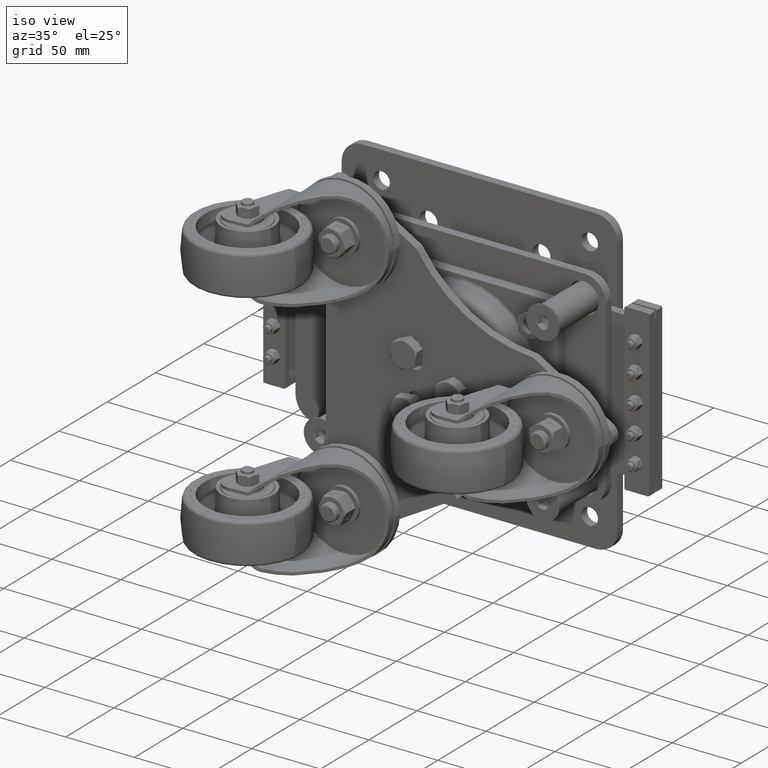
[diagram: clean part render]
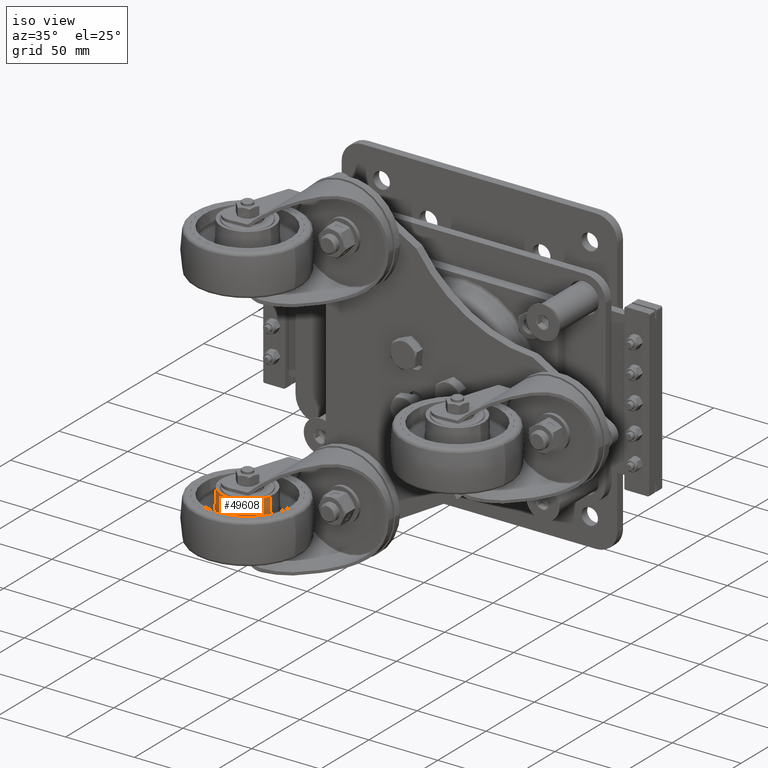
[diagram: same view with one face highlighted and labeled with its STEP entity id]
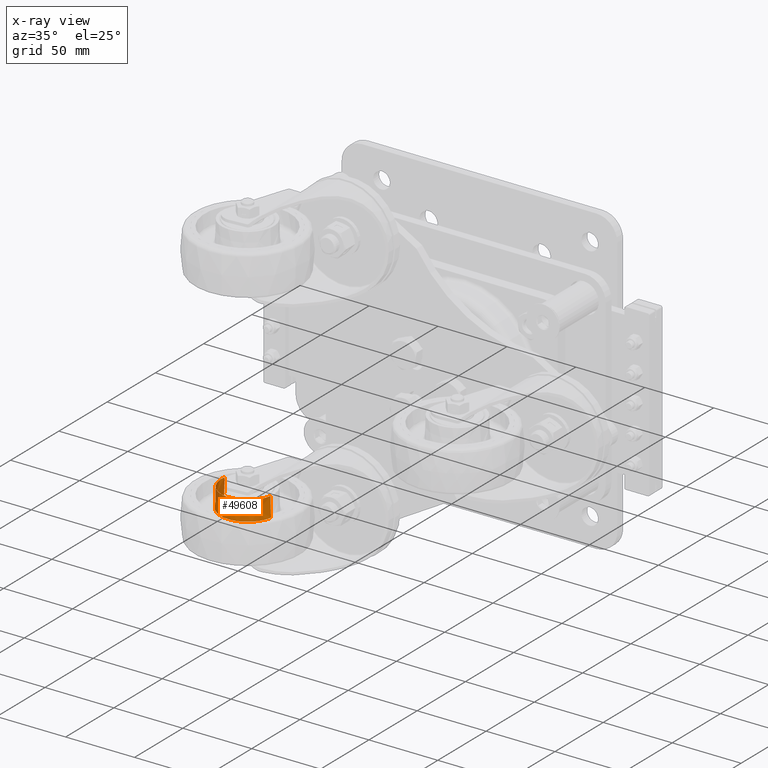
[diagram: x-ray of the same camera — body ghosted, the highlighted face saturated]
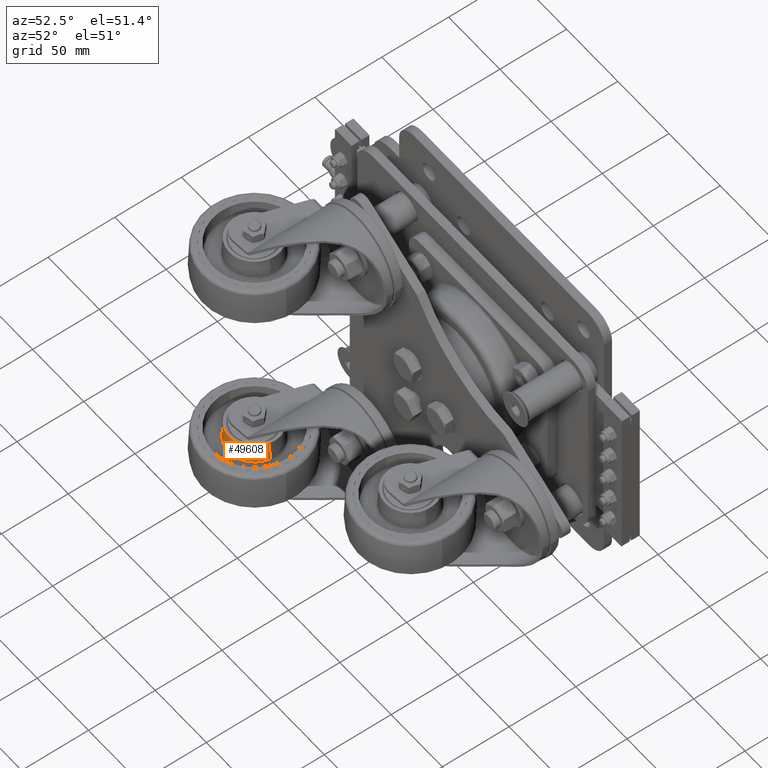
[diagram: same view with one face highlighted and labeled with its STEP entity id]
A machine part, iso view. The second image highlights one B-rep face of the part: STEP entity #49608.
The next image is the same camera in x-ray: the body ghosted, the highlighted face saturated — about 0% of this face is hidden behind the body in this view.
A second angle (auxiliary view) of the same face is appended — the face is thin or edge-on in the first view.
In plain terms, the highlighted conical surface has half-angle 2 deg.
Its self-contained STEP definition (entity closure, byte-faithful):
#2853 = EDGE_LOOP ( 'NONE', ( #5209, #82003, #94356, #73815, #51128 ) ) ;
#5209 = ORIENTED_EDGE ( 'NONE', *, *, #127698, .F. ) ;
#5767 = VECTOR ( 'NONE', #29502, 1000.000000000000114 ) ;
#9813 = VERTEX_POINT ( 'NONE', #76328 ) ;
#12220 = DIRECTION ( 'NONE',  ( 0.9870184825516734595, -0.1606067093909585575, 0.0000000000000000000 ) ) ;
#16117 = AXIS2_PLACEMENT_3D ( 'NONE', #125349, #126218, #56059 ) ;
#18349 = DIRECTION ( 'NONE',  ( -0.9870184825516734595, 0.1606067093909584464, 0.0000000000000000000 ) ) ;
#18839 = CARTESIAN_POINT ( 'NONE',  ( -105.5033511684820269, -105.9484725215718726, -67.90157848412015085 ) ) ;
#20389 = VERTEX_POINT ( 'NONE', #27210 ) ;
#26115 = LINE ( 'NONE', #78516, #5767 ) ;
#26645 = FACE_OUTER_BOUND ( 'NONE', #2853, .T. ) ;
#27210 = CARTESIAN_POINT ( 'NONE',  ( -67.99664883151832839, -112.0515274784283122, -67.90157848412015085 ) ) ;
#29225 = VERTEX_POINT ( 'NONE', #94334 ) ;
#29502 = DIRECTION ( 'NONE',  ( 0.03444644827711845075, -0.005605093324789445566, -0.9993908270190956511 ) ) ;
#35147 = DIRECTION ( 'NONE',  ( -0.9870184825516734595, 0.1606067093909584742, 0.0000000000000000000 ) ) ;
#43279 = DIRECTION ( 'NONE',  ( -2.612927235690062728E-16, -3.015932226210252133E-16, -1.000000000000000000 ) ) ;
#47928 = CARTESIAN_POINT ( 'NONE',  ( -105.7963244502449243, -105.9008001876133847, -76.40157848412016506 ) ) ;
#49608 = ADVANCED_FACE ( 'NONE', ( #26645 ), #57761, .T. ) ;
#51128 = ORIENTED_EDGE ( 'NONE', *, *, #122695, .F. ) ;
#56059 = DIRECTION ( 'NONE',  ( 0.9870184825516734595, -0.1606067093909585575, 0.0000000000000000000 ) ) ;
#57761 = CONICAL_SURFACE ( 'NONE', #83615, 19.29682654067989844, 0.03490658503988566114 ) ;
#58617 = AXIS2_PLACEMENT_3D ( 'NONE', #62077, #43279, #12220 ) ;
#59923 = EDGE_CURVE ( 'NONE', #9813, #94505, #73453, .T. ) ;
#62077 = CARTESIAN_POINT ( 'NONE',  ( -86.75000000000018474, -109.0000000000000995, -82.00627697422766005 ) ) ;
#68233 = DIRECTION ( 'NONE',  ( -2.612927235690062728E-16, -3.015932226210252133E-16, -1.000000000000000000 ) ) ;
#73453 = CIRCLE ( 'NONE', #58617, 19.49254692472360162 ) ;
#73815 = ORIENTED_EDGE ( 'NONE', *, *, #59923, .F. ) ;
#76328 = CARTESIAN_POINT ( 'NONE',  ( -89.88063381922890471, -128.2395040867080809, -82.00627697422766005 ) ) ;
#77016 = CARTESIAN_POINT ( 'NONE',  ( -86.75000000000018474, -109.0000000000000995, -76.40157848412016506 ) ) ;
#78516 = CARTESIAN_POINT ( 'NONE',  ( -67.70367554975545943, -112.0991998123868143, -76.40157848412016506 ) ) ;
#82003 = ORIENTED_EDGE ( 'NONE', *, *, #87393, .T. ) ;
#83615 = AXIS2_PLACEMENT_3D ( 'NONE', #77016, #68233, #18349 ) ;
#87393 = EDGE_CURVE ( 'NONE', #20389, #111790, #121769, .T. ) ;
#87483 = VECTOR ( 'NONE', #118433, 1000.000000000000114 ) ;
#94334 = CARTESIAN_POINT ( 'NONE',  ( -67.51049591329213229, -112.1306338192288194, -82.00627697422766005 ) ) ;
#94356 = ORIENTED_EDGE ( 'NONE', *, *, #125991, .T. ) ;
#94505 = VERTEX_POINT ( 'NONE', #94619 ) ;
#94619 = CARTESIAN_POINT ( 'NONE',  ( -105.9895040867082514, -105.8693661807713795, -82.00627697422766005 ) ) ;
#94661 = CARTESIAN_POINT ( 'NONE',  ( -86.75000000000018474, -109.0000000000000995, -67.90157848412015085 ) ) ;
#95406 = LINE ( 'NONE', #47928, #87483 ) ;
#101094 = CIRCLE ( 'NONE', #16117, 19.49254692472360162 ) ;
#110124 = AXIS2_PLACEMENT_3D ( 'NONE', #94661, #124823, #35147 ) ;
#111790 = VERTEX_POINT ( 'NONE', #18839 ) ;
#118433 = DIRECTION ( 'NONE',  ( -0.03444644827711897811, 0.005605093324788846219, -0.9993908270190956511 ) ) ;
#121769 = CIRCLE ( 'NONE', #110124, 19.00000000000000355 ) ;
#122695 = EDGE_CURVE ( 'NONE', #29225, #9813, #101094, .T. ) ;
#124823 = DIRECTION ( 'NONE',  ( -2.612927235690062728E-16, -3.015932226210252133E-16, -1.000000000000000000 ) ) ;
#125349 = CARTESIAN_POINT ( 'NONE',  ( -86.75000000000018474, -109.0000000000000995, -82.00627697422766005 ) ) ;
#125991 = EDGE_CURVE ( 'NONE', #111790, #94505, #95406, .T. ) ;
#126218 = DIRECTION ( 'NONE',  ( -2.612927235690062728E-16, -3.015932226210252133E-16, -1.000000000000000000 ) ) ;
#127698 = EDGE_CURVE ( 'NONE', #20389, #29225, #26115, .T. ) ;